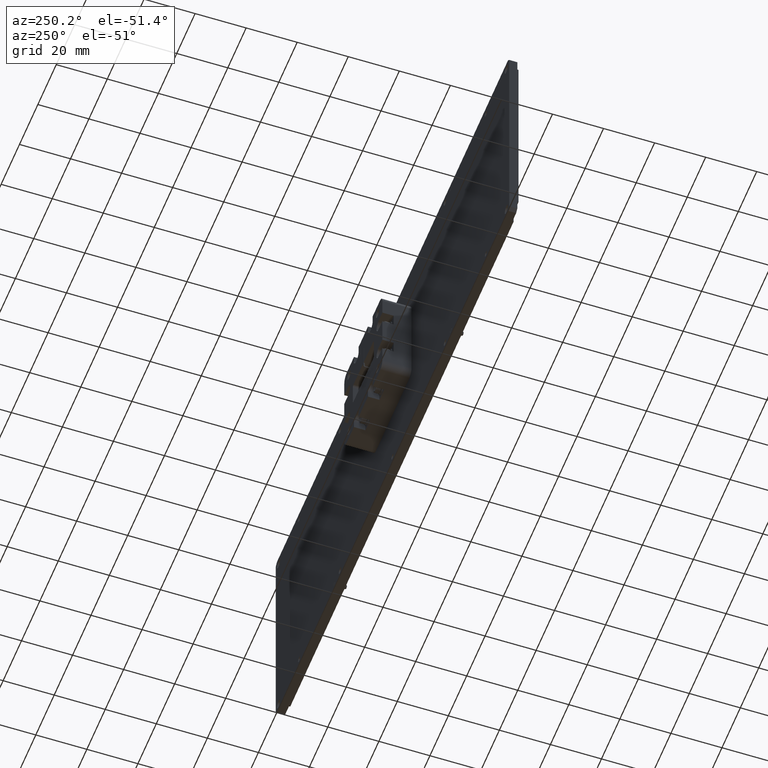
[diagram: clean part render]
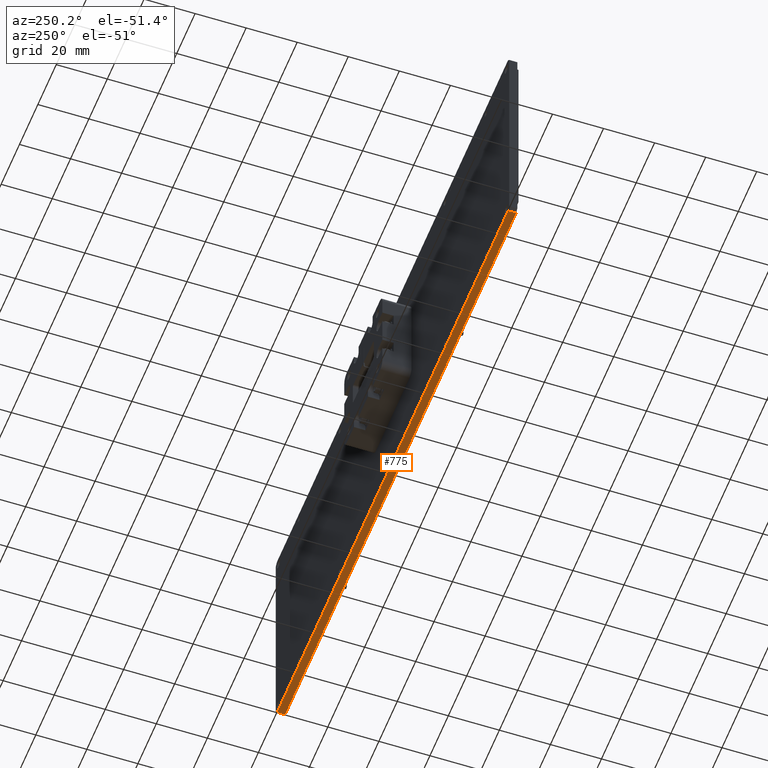
[diagram: same view with one face highlighted and labeled with its STEP entity id]
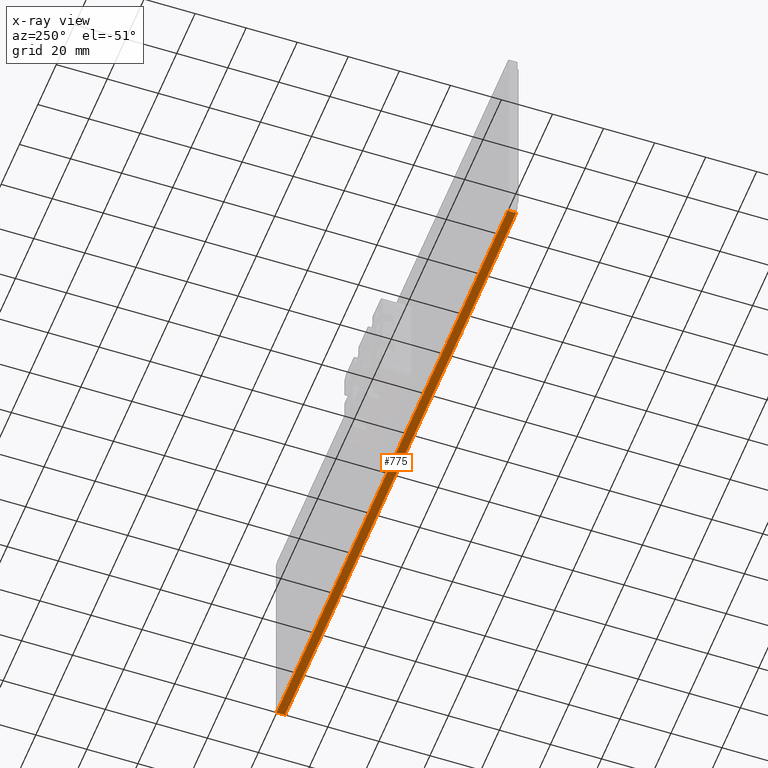
[diagram: x-ray of the same camera — body ghosted, the highlighted face saturated]
A machine part, auxiliary view. The second image highlights one B-rep face of the part: STEP entity #775.
The next image is the same camera in x-ray: the body ghosted, the highlighted face saturated — about 0% of this face is hidden behind the body in this view.
In plain terms, the highlighted planar face has unit normal (0, -0, 1).
Its self-contained STEP definition (entity closure, byte-faithful):
#58 = VERTEX_POINT ( 'NONE', #4154 ) ;
#389 = LINE ( 'NONE', #2280, #3273 ) ;
#672 = LINE ( 'NONE', #13449, #3717 ) ;
#775 = ADVANCED_FACE ( 'NONE', ( #11886 ), #6609, .F. ) ;
#1142 = CARTESIAN_POINT ( 'NONE',  ( 104.2148905491917503, 18.86423224274894750, -44.16416518917521472 ) ) ;
#1455 = DIRECTION ( 'NONE',  ( -1.000000000000000000, 0.000000000000000000, 0.000000000000000000 ) ) ;
#1482 = EDGE_LOOP ( 'NONE', ( #12698, #11155, #3475, #8786 ) ) ;
#2280 = CARTESIAN_POINT ( 'NONE',  ( -148.5151094508082110, 18.86423224274894750, -44.16416518917521472 ) ) ;
#3273 = VECTOR ( 'NONE', #11968, 1000.000000000000000 ) ;
#3475 = ORIENTED_EDGE ( 'NONE', *, *, #8140, .F. ) ;
#3564 = CARTESIAN_POINT ( 'NONE',  ( 104.2148905491917503, 18.86423224274894750, -44.16416518917521472 ) ) ;
#3717 = VECTOR ( 'NONE', #5871, 1000.000000000000000 ) ;
#4154 = CARTESIAN_POINT ( 'NONE',  ( -148.5151094508082394, 18.86423224274894750, -44.16416518917519340 ) ) ;
#4667 = CARTESIAN_POINT ( 'NONE',  ( 102.9448905491917543, 18.86423224274894750, -44.16416518917521472 ) ) ;
#5310 = AXIS2_PLACEMENT_3D ( 'NONE', #1142, #5573, #11956 ) ;
#5337 = DIRECTION ( 'NONE',  ( 0.000000000000000000, -1.000000000000000000, 0.000000000000000000 ) ) ;
#5573 = DIRECTION ( 'NONE',  ( 0.000000000000000000, -0.000000000000000000, 1.000000000000000000 ) ) ;
#5732 = LINE ( 'NONE', #4667, #9001 ) ;
#5871 = DIRECTION ( 'NONE',  ( -1.000000000000000000, 0.000000000000000000, 0.000000000000000000 ) ) ;
#6609 = PLANE ( 'NONE',  #5310 ) ;
#6651 = VERTEX_POINT ( 'NONE', #11325 ) ;
#7129 = VERTEX_POINT ( 'NONE', #10051 ) ;
#7400 = EDGE_CURVE ( 'NONE', #6651, #7129, #5732, .T. ) ;
#8140 = EDGE_CURVE ( 'NONE', #6651, #58, #9875, .T. ) ;
#8182 = VECTOR ( 'NONE', #1455, 1000.000000000000000 ) ;
#8306 = EDGE_CURVE ( 'NONE', #7129, #10438, #672, .T. ) ;
#8598 = EDGE_CURVE ( 'NONE', #10438, #58, #389, .T. ) ;
#8786 = ORIENTED_EDGE ( 'NONE', *, *, #7400, .T. ) ;
#9001 = VECTOR ( 'NONE', #5337, 1000.000000000000000 ) ;
#9495 = CARTESIAN_POINT ( 'NONE',  ( -148.5151094508082110, 15.68923224274894679, -44.16416518917521472 ) ) ;
#9875 = LINE ( 'NONE', #3564, #8182 ) ;
#10051 = CARTESIAN_POINT ( 'NONE',  ( 102.9448905491917543, 15.68923224274894679, -44.16416518917521472 ) ) ;
#10438 = VERTEX_POINT ( 'NONE', #9495 ) ;
#11155 = ORIENTED_EDGE ( 'NONE', *, *, #8598, .T. ) ;
#11325 = CARTESIAN_POINT ( 'NONE',  ( 102.9448905491917827, 18.86423224274894750, -44.16416518917520762 ) ) ;
#11886 = FACE_OUTER_BOUND ( 'NONE', #1482, .T. ) ;
#11956 = DIRECTION ( 'NONE',  ( 1.000000000000000000, 0.000000000000000000, -0.000000000000000000 ) ) ;
#11968 = DIRECTION ( 'NONE',  ( 0.000000000000000000, 1.000000000000000000, 0.000000000000000000 ) ) ;
#12698 = ORIENTED_EDGE ( 'NONE', *, *, #8306, .T. ) ;
#13449 = CARTESIAN_POINT ( 'NONE',  ( 104.2148905491917503, 15.68923224274894679, -44.16416518917521472 ) ) ;